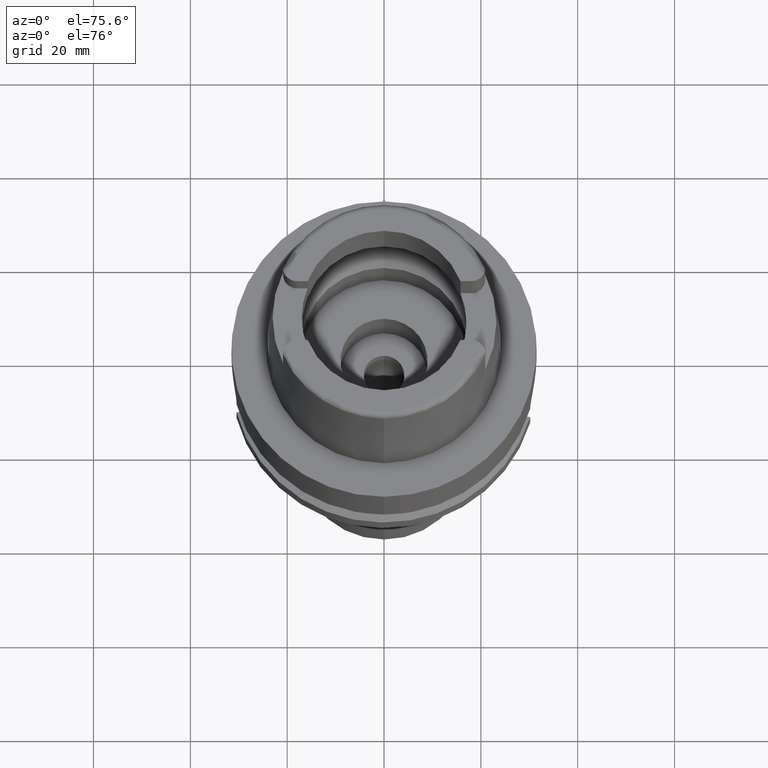
[diagram: clean part render]
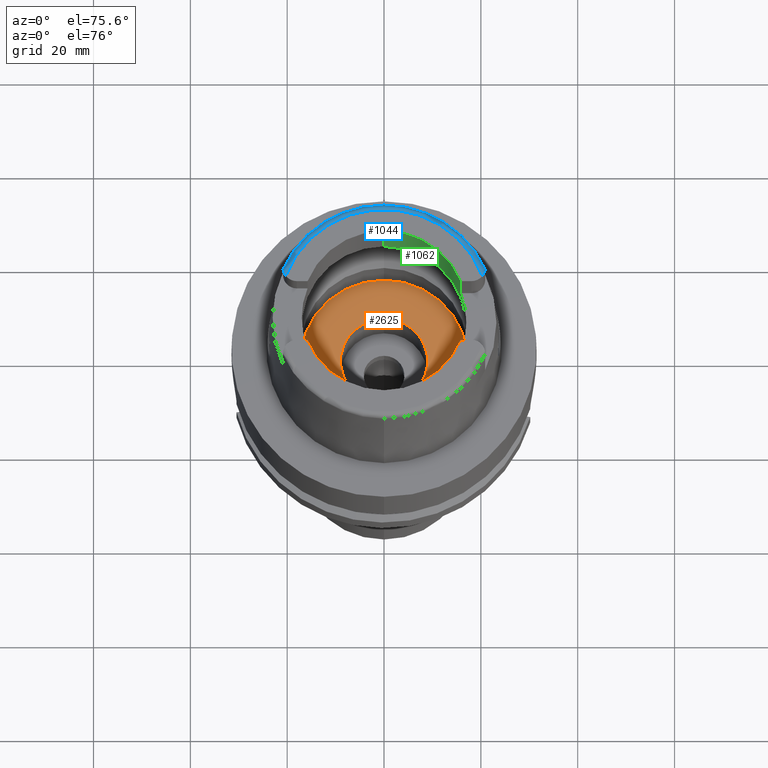
[diagram: same view with three faces highlighted in distinct colors, each labeled with its STEP entity id]
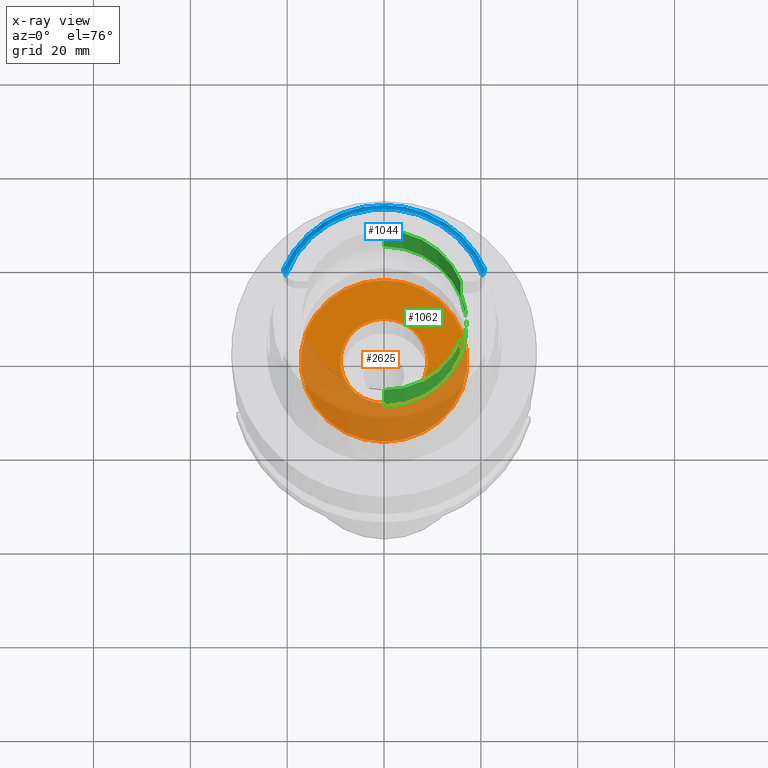
[diagram: x-ray of the same camera — body ghosted, the three highlighted faces saturated]
A machine part, auxiliary view with three faces highlighted in distinct colors.
The next image is the same camera in x-ray (body ghosted, the three faces saturated) — at least one of them is partly hidden behind the body in this view.
Their STEP definitions:

[orange] entity #2625 — the highlighted planar face has unit normal (0, 0, 1).
#38 = ORIENTED_EDGE ( 'NONE', *, *, #5323, .F. ) ;
#103 = CARTESIAN_POINT ( 'NONE',  ( 0.0000000000000000000, -17.25000000000000000, -9.950000000000001066 ) ) ;
#180 = CARTESIAN_POINT ( 'NONE',  ( 0.0000000000000000000, 0.0000000000000000000, -9.950000000000001066 ) ) ;
#206 = VERTEX_POINT ( 'NONE', #4250 ) ;
#228 = CARTESIAN_POINT ( 'NONE',  ( 0.0000000000000000000, 0.0000000000000000000, -9.950000000000001066 ) ) ;
#236 = DIRECTION ( 'NONE',  ( 0.0000000000000000000, 1.000000000000000000, 0.0000000000000000000 ) ) ;
#241 = ORIENTED_EDGE ( 'NONE', *, *, #5179, .F. ) ;
#426 = ORIENTED_EDGE ( 'NONE', *, *, #2031, .F. ) ;
#653 = CIRCLE ( 'NONE', #2102, 17.25000000000000000 ) ;
#1069 = DIRECTION ( 'NONE',  ( 0.0000000000000000000, 0.0000000000000000000, 1.000000000000000000 ) ) ;
#1117 = AXIS2_PLACEMENT_3D ( 'NONE', #180, #1069, #2731 ) ;
#1156 = DIRECTION ( 'NONE',  ( 0.0000000000000000000, 0.0000000000000000000, 1.000000000000000000 ) ) ;
#1377 = EDGE_CURVE ( 'NONE', #4331, #5367, #2588, .T. ) ;
#1683 = FACE_BOUND ( 'NONE', #4542, .T. ) ;
#2014 = ORIENTED_EDGE ( 'NONE', *, *, #1377, .F. ) ;
#2031 = EDGE_CURVE ( 'NONE', #206, #2752, #4268, .T. ) ;
#2064 = CARTESIAN_POINT ( 'NONE',  ( 0.0000000000000000000, 0.0000000000000000000, -9.950000000000001066 ) ) ;
#2102 = AXIS2_PLACEMENT_3D ( 'NONE', #228, #5487, #4604 ) ;
#2179 = DIRECTION ( 'NONE',  ( 1.000000000000000000, 0.0000000000000000000, 0.0000000000000000000 ) ) ;
#2416 = AXIS2_PLACEMENT_3D ( 'NONE', #3259, #4586, #236 ) ;
#2512 = AXIS2_PLACEMENT_3D ( 'NONE', #4833, #5256, #2179 ) ;
#2588 = CIRCLE ( 'NONE', #4451, 9.000000000000000000 ) ;
#2625 = ADVANCED_FACE ( 'NONE', ( #3517, #1683 ), #3923, .T. ) ;
#2731 = DIRECTION ( 'NONE',  ( 0.0000000000000000000, -1.000000000000000000, 0.0000000000000000000 ) ) ;
#2752 = VERTEX_POINT ( 'NONE', #103 ) ;
#2889 = DIRECTION ( 'NONE',  ( 0.0000000000000000000, 1.000000000000000000, 0.0000000000000000000 ) ) ;
#2917 = CIRCLE ( 'NONE', #1117, 9.000000000000000000 ) ;
#2987 = EDGE_LOOP ( 'NONE', ( #426, #38 ) ) ;
#3240 = CARTESIAN_POINT ( 'NONE',  ( 0.0000000000000000000, 9.000000000000000000, -9.950000000000001066 ) ) ;
#3259 = CARTESIAN_POINT ( 'NONE',  ( 0.0000000000000000000, 0.0000000000000000000, -9.950000000000001066 ) ) ;
#3517 = FACE_OUTER_BOUND ( 'NONE', #2987, .T. ) ;
#3923 = PLANE ( 'NONE',  #2512 ) ;
#4177 = CARTESIAN_POINT ( 'NONE',  ( 0.0000000000000000000, -9.000000000000000000, -9.950000000000001066 ) ) ;
#4250 = CARTESIAN_POINT ( 'NONE',  ( 0.0000000000000000000, 17.25000000000000000, -9.950000000000001066 ) ) ;
#4268 = CIRCLE ( 'NONE', #2416, 17.25000000000000000 ) ;
#4331 = VERTEX_POINT ( 'NONE', #3240 ) ;
#4451 = AXIS2_PLACEMENT_3D ( 'NONE', #2064, #1156, #2889 ) ;
#4542 = EDGE_LOOP ( 'NONE', ( #2014, #241 ) ) ;
#4586 = DIRECTION ( 'NONE',  ( 0.0000000000000000000, 0.0000000000000000000, -1.000000000000000000 ) ) ;
#4604 = DIRECTION ( 'NONE',  ( 0.0000000000000000000, -1.000000000000000000, 0.0000000000000000000 ) ) ;
#4833 = CARTESIAN_POINT ( 'NONE',  ( 0.0000000000000000000, 0.0000000000000000000, -9.950000000000001066 ) ) ;
#5179 = EDGE_CURVE ( 'NONE', #5367, #4331, #2917, .T. ) ;
#5256 = DIRECTION ( 'NONE',  ( 0.0000000000000000000, 0.0000000000000000000, 1.000000000000000000 ) ) ;
#5323 = EDGE_CURVE ( 'NONE', #2752, #206, #653, .T. ) ;
#5367 = VERTEX_POINT ( 'NONE', #4177 ) ;
#5487 = DIRECTION ( 'NONE',  ( 0.0000000000000000000, 0.0000000000000000000, -1.000000000000000000 ) ) ;

[blue] entity #1044 — the highlighted toroidal blend (fillet) surface has major radius 21.5735 mm and minor (blend) radius 1.2 mm.
#12 = CARTESIAN_POINT ( 'NONE',  ( 0.0000000000000000000, 0.0000000000000000000, 30.85992712280000205 ) ) ;
#189 = CARTESIAN_POINT ( 'NONE',  ( 20.86809648668716477, 8.965178160332095914, 31.17907103338143671 ) ) ;
#234 = EDGE_CURVE ( 'NONE', #4756, #4552, #2391, .T. ) ;
#267 = CARTESIAN_POINT ( 'NONE',  ( -20.79475416015382550, 8.495578030448260876, 31.60548312927167913 ) ) ;
#296 = CARTESIAN_POINT ( 'NONE',  ( -20.76676558891731972, 8.384307469089021581, 31.67525026939998511 ) ) ;
#323 = CARTESIAN_POINT ( 'NONE',  ( -20.26871835884000106, 7.388795116669998997, 32.00000000000000000 ) ) ;
#476 = AXIS2_PLACEMENT_3D ( 'NONE', #4353, #1668, #1302 ) ;
#572 = CARTESIAN_POINT ( 'NONE',  ( 20.81105486030271834, 8.498358280422667832, 31.58708803568267243 ) ) ;
#605 = CARTESIAN_POINT ( 'NONE',  ( 20.85121533735111399, 8.739731814290777834, 31.41019551202849769 ) ) ;
#607 = AXIS2_PLACEMENT_3D ( 'NONE', #816, #3637, #1026 ) ;
#752 = CARTESIAN_POINT ( 'NONE',  ( -20.81561736822073172, 8.592881383847238652, 31.53834158367306628 ) ) ;
#780 = CARTESIAN_POINT ( 'NONE',  ( -20.86948245504313704, 9.049625245024563114, 31.07720529792470288 ) ) ;
#809 = CARTESIAN_POINT ( 'NONE',  ( -20.83226603561545076, 8.678850042677693111, 31.47562504319049381 ) ) ;
#816 = CARTESIAN_POINT ( 'NONE',  ( 0.0000000000000000000, 0.0000000000000000000, 30.80000000000000071 ) ) ;
#893 = DIRECTION ( 'NONE',  ( -0.9164655183265837390, 0.4001136759951928745, 0.0000000000000000000 ) ) ;
#904 = B_SPLINE_CURVE_WITH_KNOTS ( 'NONE', 3,
 ( #2237, #1440, #2213, #4516 ),
 .UNSPECIFIED., .F., .F.,
 ( 4, 4 ),
 ( 0.0000000000000000000, 1.000000000000000000 ),
 .UNSPECIFIED. ) ;
#959 = CARTESIAN_POINT ( 'NONE',  ( 20.80529406261703329, 8.471501308426445220, 31.60448300349639439 ) ) ;
#995 = CARTESIAN_POINT ( 'NONE',  ( 20.75858659385772143, 8.281960584151816462, 31.71887479260377418 ) ) ;
#1026 = DIRECTION ( 'NONE',  ( -0.0006539142454762719193, -0.9999997861980568503, 0.0000000000000000000 ) ) ;
#1044 = ADVANCED_FACE ( 'NONE', ( #5145 ), #1079, .T. ) ;
#1049 = CARTESIAN_POINT ( 'NONE',  ( 20.86499379108819241, 8.901201978582049534, 31.25474381724544060 ) ) ;
#1079 = TOROIDAL_SURFACE ( 'NONE', #607, 21.57348458609000019, 1.199999999999999956 ) ;
#1155 = CARTESIAN_POINT ( 'NONE',  ( -20.85327247983546428, 8.838547258779984261, 31.33347031099933133 ) ) ;
#1194 = AXIS2_PLACEMENT_3D ( 'NONE', #12, #3622, #893 ) ;
#1231 = CARTESIAN_POINT ( 'NONE',  ( -20.34067418819855178, 7.481894489109172319, 32.00000000000000000 ) ) ;
#1302 = DIRECTION ( 'NONE',  ( -0.9395199128801114963, 0.3424942821446042007, 0.0000000000000000000 ) ) ;
#1337 = CARTESIAN_POINT ( 'NONE',  ( 20.86994457043000040, 9.110917567833000774, 30.85992712280000205 ) ) ;
#1375 = CARTESIAN_POINT ( 'NONE',  ( 20.63977637674802779, 7.958061083204992059, 31.86797337379210404 ) ) ;
#1440 = CARTESIAN_POINT ( 'NONE',  ( 20.87000000000000099, 9.104744530400367353, 30.90884546145085920 ) ) ;
#1460 = CARTESIAN_POINT ( 'NONE',  ( 20.68756620139082969, 8.073666090067661116, 31.82058504871659110 ) ) ;
#1474 = DIRECTION ( 'NONE',  ( 0.0000000000000000000, 0.0000000000000000000, -1.000000000000000000 ) ) ;
#1486 = CARTESIAN_POINT ( 'NONE',  ( 20.82267545773194328, 8.557074228379121905, 31.54758082911157047 ) ) ;
#1603 = CARTESIAN_POINT ( 'NONE',  ( -20.62670010046526770, 7.991353061173134265, 31.86808745985745972 ) ) ;
#1630 = CARTESIAN_POINT ( 'NONE',  ( -20.80223093563148140, 8.528228932157547959, 31.58382012117601079 ) ) ;
#1649 = CIRCLE ( 'NONE', #476, 21.57348458608998598 ) ;
#1668 = DIRECTION ( 'NONE',  ( 0.0000000000000000000, 0.0000000000000000000, -1.000000000000000000 ) ) ;
#1687 = ORIENTED_EDGE ( 'NONE', *, *, #5597, .T. ) ;
#1748 = CARTESIAN_POINT ( 'NONE',  ( 20.87000000000000099, 9.070000000000000284, 31.00584217417999966 ) ) ;
#1854 = CARTESIAN_POINT ( 'NONE',  ( 20.40989687917821627, 7.518047379853974199, 32.00000000000000711 ) ) ;
#1889 = CARTESIAN_POINT ( 'NONE',  ( 20.78381154741899195, 8.374294715605635986, 31.66655423607583231 ) ) ;
#1921 = CARTESIAN_POINT ( 'NONE',  ( 20.81761734289964849, 8.530370163154904262, 31.56590774490547346 ) ) ;
#2004 = CARTESIAN_POINT ( 'NONE',  ( -20.84240343152041675, 8.747603331230285661, 31.41918084664851918 ) ) ;
#2115 = CARTESIAN_POINT ( 'NONE',  ( -20.50165386046399973, 7.739418607604179989, 31.95209984357946098 ) ) ;
#2197 = VERTEX_POINT ( 'NONE', #1337 ) ;
#2213 = CARTESIAN_POINT ( 'NONE',  ( 20.87000000000000099, 9.091125264143702367, 30.95748277892419509 ) ) ;
#2237 = CARTESIAN_POINT ( 'NONE',  ( 20.86994457043000040, 9.110917567833000774, 30.85992712280000205 ) ) ;
#2305 = CARTESIAN_POINT ( 'NONE',  ( 20.83209739376834690, 8.609480642634158798, 31.51069715640112534 ) ) ;
#2339 = CARTESIAN_POINT ( 'NONE',  ( 20.80608782433957771, 8.475150371668325633, 31.60213541274498894 ) ) ;
#2390 = CARTESIAN_POINT ( 'NONE',  ( -20.26871835884000106, 7.388795116669998997, 32.00000000000000000 ) ) ;
#2391 = B_SPLINE_CURVE_WITH_KNOTS ( 'NONE', 3,
 ( #323, #1231, #5133, #2115, #2912, #5552, #4195, #4616, #1603, #4645, #3807, #4714, #2451, #2428, #4667, #5573, #296, #2967, #267, #1630, #3361, #3336, #752, #809, #2004, #1155, #4688, #4220, #2533, #780, #2505, #5476 ),
 .UNSPECIFIED., .F., .F.,
 ( 4, 2, 2, 1, 2, 2, 1, 1, 2, 2, 2, 1, 2, 2, 2, 2, 2, 4 ),
 ( 0.0000000000000000000, 0.1250000000000304479, 0.1875000000000456857, 0.2187500000000512923, 0.2343750000000547895, 0.2500000000000582867, 0.3125000000000675571, 0.3437500000000719980, 0.3593750000000737743, 0.3750000000000754952, 0.4375000000000777156, 0.4687500000000758282, 0.4843750000000743849, 0.5000000000000729417, 0.6250000000000562883, 0.6875000000000477396, 0.7500000000000391909, 1.000000000000000000 ),
 .UNSPECIFIED. ) ;
#2428 = CARTESIAN_POINT ( 'NONE',  ( -20.73716977129511463, 8.285332636989780397, 31.73072091381705917 ) ) ;
#2451 = CARTESIAN_POINT ( 'NONE',  ( -20.72457886090585077, 8.245659686592164306, 31.75201846598045563 ) ) ;
#2505 = CARTESIAN_POINT ( 'NONE',  ( -20.86956591921818926, 9.098320242369798194, 30.96767079620859420 ) ) ;
#2533 = CARTESIAN_POINT ( 'NONE',  ( -20.86274023685875889, 8.944556758924020912, 31.21636234624175188 ) ) ;
#2672 = EDGE_CURVE ( 'NONE', #4620, #4836, #4282, .T. ) ;
#2784 = DIRECTION ( 'NONE',  ( 0.0006539142454758719572, 0.9999997861980568503, 0.0000000000000000000 ) ) ;
#2803 = CARTESIAN_POINT ( 'NONE',  ( 20.86355432375158614, 8.878262259519514643, 31.27928211074156550 ) ) ;
#2861 = CIRCLE ( 'NONE', #4252, 22.77198729362000051 ) ;
#2912 = CARTESIAN_POINT ( 'NONE',  ( -20.53136725581659405, 7.793628558211136870, 31.93713104469801678 ) ) ;
#2967 = CARTESIAN_POINT ( 'NONE',  ( -20.77877854051920181, 8.429465264912041178, 31.64799484984392208 ) ) ;
#3204 = CARTESIAN_POINT ( 'NONE',  ( 20.85732631407047322, 8.798617424300635648, 31.35856564310623895 ) ) ;
#3336 = CARTESIAN_POINT ( 'NONE',  ( -20.81334300924961411, 8.581448009765265894, 31.54656152222291254 ) ) ;
#3361 = CARTESIAN_POINT ( 'NONE',  ( -20.80899055594039737, 8.560246357368288983, 31.56154639136604700 ) ) ;
#3486 = CARTESIAN_POINT ( 'NONE',  ( 20.87000000000000810, 9.048661022791606001, 31.05469079571804158 ) ) ;
#3572 = CARTESIAN_POINT ( 'NONE',  ( 20.52526502177041223, 7.704955972811094789, 31.96182034306069397 ) ) ;
#3622 = DIRECTION ( 'NONE',  ( 0.0000000000000000000, 0.0000000000000000000, -1.000000000000000000 ) ) ;
#3637 = DIRECTION ( 'NONE',  ( 0.0000000000000000000, 0.0000000000000000000, 1.000000000000000000 ) ) ;
#3645 = CARTESIAN_POINT ( 'NONE',  ( 0.0000000000000000000, 0.0000000000000000000, 30.85992712280000205 ) ) ;
#3658 = EDGE_CURVE ( 'NONE', #3764, #2197, #2861, .T. ) ;
#3663 = CARTESIAN_POINT ( 'NONE',  ( 20.80809472225364942, 8.484457555089049308, 31.59612220794812032 ) ) ;
#3764 = VERTEX_POINT ( 'NONE', #4750 ) ;
#3791 = ORIENTED_EDGE ( 'NONE', *, *, #3658, .F. ) ;
#3807 = CARTESIAN_POINT ( 'NONE',  ( -20.66183456295862086, 8.073426595587044119, 31.83461982866800355 ) ) ;
#3810 = CARTESIAN_POINT ( 'NONE',  ( 20.87000000000000099, 9.070000000000000284, 31.00584217417999966 ) ) ;
#4012 = ORIENTED_EDGE ( 'NONE', *, *, #2672, .F. ) ;
#4052 = ORIENTED_EDGE ( 'NONE', *, *, #5252, .F. ) ;
#4103 = CARTESIAN_POINT ( 'NONE',  ( 20.86978644068619104, 9.019778947846679884, 31.10410408821066497 ) ) ;
#4195 = CARTESIAN_POINT ( 'NONE',  ( -20.59417694592872650, 7.919390536088273258, 31.89559262780205984 ) ) ;
#4219 = CIRCLE ( 'NONE', #1194, 22.77198729362000407 ) ;
#4220 = CARTESIAN_POINT ( 'NONE',  ( -20.86086584658168519, 8.919299109958647165, 31.24688957465335903 ) ) ;
#4252 = AXIS2_PLACEMENT_3D ( 'NONE', #3645, #1474, #2784 ) ;
#4274 = EDGE_CURVE ( 'NONE', #2197, #4620, #904, .T. ) ;
#4275 = EDGE_LOOP ( 'NONE', ( #1687, #4012, #5123, #3791, #4052, #4549 ) ) ;
#4282 = B_SPLINE_CURVE_WITH_KNOTS ( 'NONE', 3,
 ( #1748, #3486, #4103, #189, #5339, #1049, #2803, #3204, #605, #4563, #2305, #1486, #1921, #572, #3663, #2339, #959, #1889, #995, #4507, #1460, #4454, #1375, #4481, #5399, #3572, #1854, #5373 ),
 .UNSPECIFIED., .F., .F.,
 ( 4, 2, 2, 2, 2, 2, 1, 1, 2, 2, 2, 1, 1, 2, 2, 4 ),
 ( 0.0000000000000000000, 0.1250000000000281997, 0.1875000000000394684, 0.2500000000000507372, 0.3750000000000654476, 0.4375000000000738298, 0.4687500000000773825, 0.4843750000000778266, 0.4921875000000784928, 0.5000000000000791589, 0.6250000000000434097, 0.6875000000000260902, 0.7187500000000172085, 0.7343750000000158762, 0.7500000000000145439, 1.000000000000000000 ),
 .UNSPECIFIED. ) ;
#4353 = CARTESIAN_POINT ( 'NONE',  ( 0.0000000000000000000, 0.0000000000000000000, 32.00000000000000000 ) ) ;
#4454 = CARTESIAN_POINT ( 'NONE',  ( 20.65467498054804096, 7.992708100475995003, 31.85435728862226412 ) ) ;
#4481 = CARTESIAN_POINT ( 'NONE',  ( 20.62966437408989862, 7.934977060500337132, 31.87686015680920448 ) ) ;
#4507 = CARTESIAN_POINT ( 'NONE',  ( 20.71259740711552055, 8.143147831471084785, 31.78820648678138383 ) ) ;
#4516 = CARTESIAN_POINT ( 'NONE',  ( 20.87000000000000099, 9.070000000000000284, 31.00584217417999966 ) ) ;
#4549 = ORIENTED_EDGE ( 'NONE', *, *, #234, .F. ) ;
#4552 = VERTEX_POINT ( 'NONE', #5087 ) ;
#4563 = CARTESIAN_POINT ( 'NONE',  ( 20.83745366660716059, 8.643081787710160668, 31.48580158643063243 ) ) ;
#4616 = CARTESIAN_POINT ( 'NONE',  ( -20.61381557342148696, 7.962463901467708993, 31.87931405901853310 ) ) ;
#4620 = VERTEX_POINT ( 'NONE', #3810 ) ;
#4645 = CARTESIAN_POINT ( 'NONE',  ( -20.63362917268800700, 8.007270072810390715, 31.86171945625592627 ) ) ;
#4667 = CARTESIAN_POINT ( 'NONE',  ( -20.74535007164779543, 8.311765317084052640, 31.71626419824092480 ) ) ;
#4688 = CARTESIAN_POINT ( 'NONE',  ( -20.85616675528190811, 8.866836194664982074, 31.30472609231026127 ) ) ;
#4714 = CARTESIAN_POINT ( 'NONE',  ( -20.69293206247855466, 8.152961747420134131, 31.79900010595596171 ) ) ;
#4750 = CARTESIAN_POINT ( 'NONE',  ( 0.0000000000000000000, 22.77198729362000051, 30.85992712280000205 ) ) ;
#4756 = VERTEX_POINT ( 'NONE', #2390 ) ;
#4836 = VERTEX_POINT ( 'NONE', #5453 ) ;
#5087 = CARTESIAN_POINT ( 'NONE',  ( -20.86974110885000044, 9.111383541347999326, 30.85992743143000183 ) ) ;
#5123 = ORIENTED_EDGE ( 'NONE', *, *, #4274, .F. ) ;
#5133 = CARTESIAN_POINT ( 'NONE',  ( -20.40837485517315386, 7.581292577535781341, 31.98802496089486169 ) ) ;
#5145 = FACE_OUTER_BOUND ( 'NONE', #4275, .T. ) ;
#5252 = EDGE_CURVE ( 'NONE', #4552, #3764, #4219, .T. ) ;
#5339 = CARTESIAN_POINT ( 'NONE',  ( 20.86729919500610109, 8.945098927649194565, 31.20420118284368272 ) ) ;
#5373 = CARTESIAN_POINT ( 'NONE',  ( 20.28174256341000259, 7.352969181062000814, 32.00000000000000000 ) ) ;
#5399 = CARTESIAN_POINT ( 'NONE',  ( 20.62515841562746033, 7.924850528124811611, 31.88068857206467754 ) ) ;
#5453 = CARTESIAN_POINT ( 'NONE',  ( 20.28174256341000259, 7.352969181062000814, 32.00000000000000000 ) ) ;
#5476 = CARTESIAN_POINT ( 'NONE',  ( -20.86974110885000044, 9.111383541347999326, 30.85992743143000183 ) ) ;
#5552 = CARTESIAN_POINT ( 'NONE',  ( -20.57362568863779373, 7.877109173860469937, 31.91018720671145203 ) ) ;
#5573 = CARTESIAN_POINT ( 'NONE',  ( -20.74982248439387078, 8.326638374488732453, 31.70796238447995563 ) ) ;
#5597 = EDGE_CURVE ( 'NONE', #4756, #4836, #1649, .T. ) ;

[green] entity #1062 — the highlighted cylindrical surface (partial cylindrical patch) has radius 17 mm, axis along (0, 0, 1).
#33 = DIRECTION ( 'NONE',  ( 0.9294994374136111848, 0.3688235294118045182, 0.0000000000000000000 ) ) ;
#166 = DIRECTION ( 'NONE',  ( 0.9294994374136111848, -0.3688235294118045182, 0.0000000000000000000 ) ) ;
#340 = ORIENTED_EDGE ( 'NONE', *, *, #1111, .F. ) ;
#474 = CARTESIAN_POINT ( 'NONE',  ( 15.80149043602999903, 6.270000000000000462, 22.00000000000000000 ) ) ;
#495 = DIRECTION ( 'NONE',  ( 0.0000000000000000000, 0.0000000000000000000, -1.000000000000000000 ) ) ;
#534 = CARTESIAN_POINT ( 'NONE',  ( 15.80149043602999903, -6.270000000000000462, 32.00000000000000000 ) ) ;
#558 = CARTESIAN_POINT ( 'NONE',  ( 15.80149043602999903, -6.270000000000000462, 22.00000000000000000 ) ) ;
#588 = DIRECTION ( 'NONE',  ( 0.0000000000000000000, 0.0000000000000000000, 1.000000000000000000 ) ) ;
#641 = DIRECTION ( 'NONE',  ( 0.0000000000000000000, -7.376457760500000442E-14, 1.000000000000000000 ) ) ;
#753 = AXIS2_PLACEMENT_3D ( 'NONE', #4892, #495, #2623 ) ;
#950 = CIRCLE ( 'NONE', #4330, 17.00000000000000000 ) ;
#966 = DIRECTION ( 'NONE',  ( 0.0000000000000000000, 1.000000000000000000, 0.0000000000000000000 ) ) ;
#974 = VERTEX_POINT ( 'NONE', #474 ) ;
#1062 = ADVANCED_FACE ( 'NONE', ( #2807 ), #1895, .F. ) ;
#1065 = VERTEX_POINT ( 'NONE', #1083 ) ;
#1083 = CARTESIAN_POINT ( 'NONE',  ( 0.0000000000000000000, 17.00000000000000000, 18.99602540378000270 ) ) ;
#1111 = EDGE_CURVE ( 'NONE', #1065, #5416, #5405, .T. ) ;
#1197 = EDGE_CURVE ( 'NONE', #3393, #2246, #1437, .T. ) ;
#1255 = EDGE_CURVE ( 'NONE', #3393, #974, #3798, .T. ) ;
#1341 = AXIS2_PLACEMENT_3D ( 'NONE', #3553, #1493, #166 ) ;
#1437 = LINE ( 'NONE', #2371, #5251 ) ;
#1493 = DIRECTION ( 'NONE',  ( 0.0000000000000000000, 0.0000000000000000000, 1.000000000000000000 ) ) ;
#1544 = LINE ( 'NONE', #3281, #5596 ) ;
#1787 = CARTESIAN_POINT ( 'NONE',  ( 0.0000000000000000000, 0.0000000000000000000, 32.00000000000000000 ) ) ;
#1862 = CARTESIAN_POINT ( 'NONE',  ( 0.0000000000000000000, 0.0000000000000000000, 0.0000000000000000000 ) ) ;
#1876 = CARTESIAN_POINT ( 'NONE',  ( 15.80149043602999903, 6.270000000000000462, 32.00000000000000000 ) ) ;
#1883 = AXIS2_PLACEMENT_3D ( 'NONE', #1862, #2261, #966 ) ;
#1895 = CYLINDRICAL_SURFACE ( 'NONE', #1883, 17.00000000000000000 ) ;
#2019 = CARTESIAN_POINT ( 'NONE',  ( 15.80149043602999903, 6.270000000000000462, 32.00000000000000000 ) ) ;
#2040 = EDGE_CURVE ( 'NONE', #2538, #2751, #1544, .T. ) ;
#2203 = ORIENTED_EDGE ( 'NONE', *, *, #5424, .F. ) ;
#2246 = VERTEX_POINT ( 'NONE', #534 ) ;
#2261 = DIRECTION ( 'NONE',  ( 0.0000000000000000000, 0.0000000000000000000, 1.000000000000000000 ) ) ;
#2275 = ORIENTED_EDGE ( 'NONE', *, *, #1255, .T. ) ;
#2293 = CARTESIAN_POINT ( 'NONE',  ( 0.0000000000000000000, 0.0000000000000000000, 32.00000000000000000 ) ) ;
#2371 = CARTESIAN_POINT ( 'NONE',  ( 15.80149043602999903, -6.270000000000000462, 22.00000000000000000 ) ) ;
#2518 = AXIS2_PLACEMENT_3D ( 'NONE', #2293, #588, #33 ) ;
#2538 = VERTEX_POINT ( 'NONE', #4164 ) ;
#2623 = DIRECTION ( 'NONE',  ( 0.0000000000000000000, 1.000000000000000000, 0.0000000000000000000 ) ) ;
#2751 = VERTEX_POINT ( 'NONE', #4006 ) ;
#2775 = DIRECTION ( 'NONE',  ( 0.0000000000000000000, 0.0000000000000000000, 1.000000000000000000 ) ) ;
#2807 = FACE_OUTER_BOUND ( 'NONE', #3947, .T. ) ;
#3094 = ORIENTED_EDGE ( 'NONE', *, *, #1197, .F. ) ;
#3245 = ORIENTED_EDGE ( 'NONE', *, *, #3458, .T. ) ;
#3281 = CARTESIAN_POINT ( 'NONE',  ( 0.0000000000000000000, -17.00000000000000000, 18.99602540378000270 ) ) ;
#3393 = VERTEX_POINT ( 'NONE', #558 ) ;
#3438 = ORIENTED_EDGE ( 'NONE', *, *, #2040, .T. ) ;
#3458 = EDGE_CURVE ( 'NONE', #5246, #5416, #5358, .T. ) ;
#3525 = VECTOR ( 'NONE', #641, 1000.000000000000000 ) ;
#3553 = CARTESIAN_POINT ( 'NONE',  ( 0.0000000000000000000, 0.0000000000000000000, 22.00000000000000000 ) ) ;
#3608 = CARTESIAN_POINT ( 'NONE',  ( 0.0000000000000000000, 17.00000000000000000, 18.99602540378000270 ) ) ;
#3798 = CIRCLE ( 'NONE', #1341, 17.00000000000000000 ) ;
#3845 = CIRCLE ( 'NONE', #753, 17.00000000000000000 ) ;
#3947 = EDGE_LOOP ( 'NONE', ( #2203, #3245, #340, #4707, #3438, #4719, #3094, #2275 ) ) ;
#4006 = CARTESIAN_POINT ( 'NONE',  ( 0.0000000000000000000, -17.00000000000000000, 32.00000000000000000 ) ) ;
#4164 = CARTESIAN_POINT ( 'NONE',  ( 0.0000000000000000000, -17.00000000000000000, 18.99602540378000270 ) ) ;
#4262 = LINE ( 'NONE', #2019, #5473 ) ;
#4263 = EDGE_CURVE ( 'NONE', #2751, #2246, #950, .T. ) ;
#4330 = AXIS2_PLACEMENT_3D ( 'NONE', #1787, #4489, #4464 ) ;
#4464 = DIRECTION ( 'NONE',  ( 0.0000000000000000000, -1.000000000000000000, 0.0000000000000000000 ) ) ;
#4489 = DIRECTION ( 'NONE',  ( 0.0000000000000000000, 0.0000000000000000000, 1.000000000000000000 ) ) ;
#4707 = ORIENTED_EDGE ( 'NONE', *, *, #4713, .T. ) ;
#4713 = EDGE_CURVE ( 'NONE', #1065, #2538, #3845, .T. ) ;
#4719 = ORIENTED_EDGE ( 'NONE', *, *, #4263, .T. ) ;
#4784 = DIRECTION ( 'NONE',  ( 0.0000000000000000000, 0.0000000000000000000, -1.000000000000000000 ) ) ;
#4892 = CARTESIAN_POINT ( 'NONE',  ( 0.0000000000000000000, 0.0000000000000000000, 18.99602540378000270 ) ) ;
#5027 = DIRECTION ( 'NONE',  ( 0.0000000000000000000, 7.376457760500000442E-14, 1.000000000000000000 ) ) ;
#5043 = CARTESIAN_POINT ( 'NONE',  ( 0.0000000000000000000, 17.00000000000000000, 32.00000000000000000 ) ) ;
#5246 = VERTEX_POINT ( 'NONE', #1876 ) ;
#5251 = VECTOR ( 'NONE', #2775, 1000.000000000000000 ) ;
#5358 = CIRCLE ( 'NONE', #2518, 17.00000000000000000 ) ;
#5405 = LINE ( 'NONE', #3608, #3525 ) ;
#5416 = VERTEX_POINT ( 'NONE', #5043 ) ;
#5424 = EDGE_CURVE ( 'NONE', #5246, #974, #4262, .T. ) ;
#5473 = VECTOR ( 'NONE', #4784, 1000.000000000000000 ) ;
#5596 = VECTOR ( 'NONE', #5027, 1000.000000000000000 ) ;